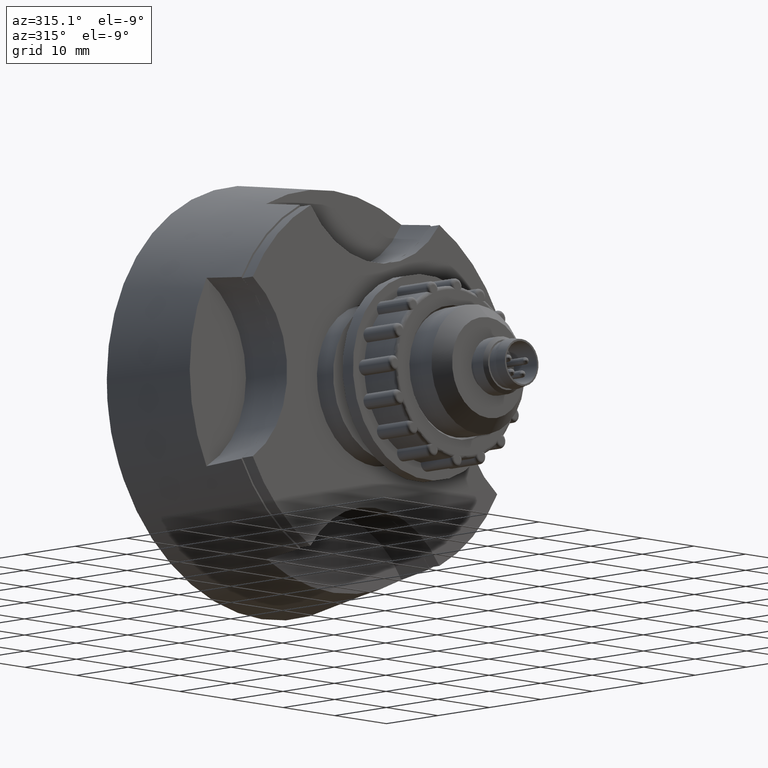
[diagram: clean part render]
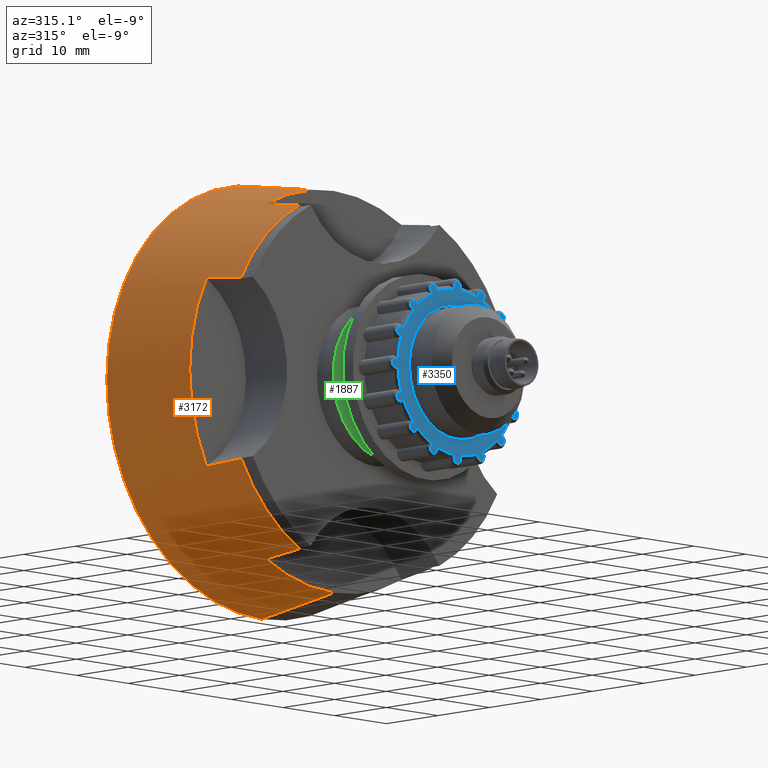
[diagram: same view with three faces highlighted in distinct colors, each labeled with its STEP entity id]
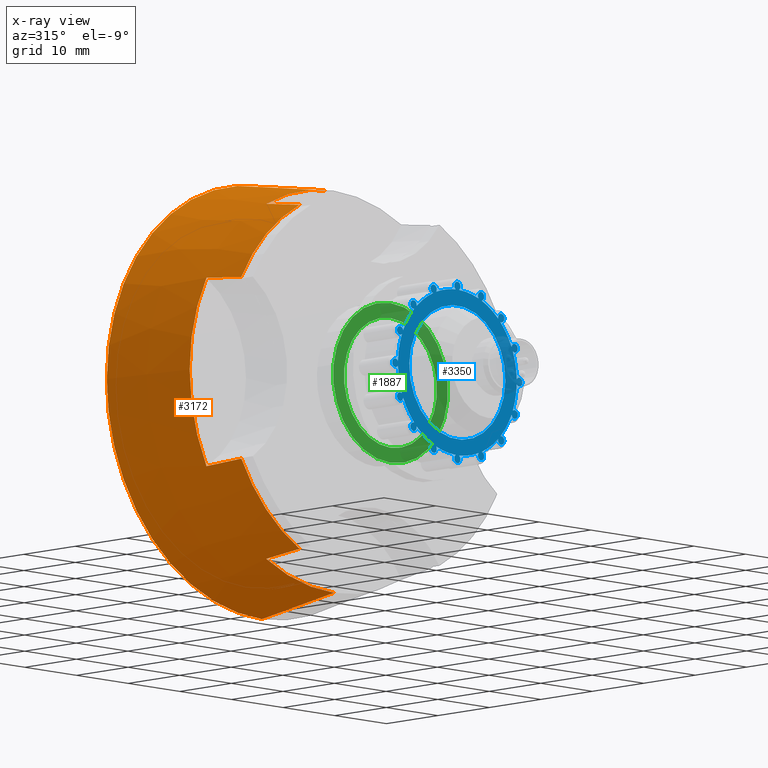
[diagram: x-ray of the same camera — body ghosted, the three highlighted faces saturated]
A machine part, auxiliary view with three faces highlighted in distinct colors.
The next image is the same camera in x-ray (body ghosted, the three faces saturated) — at least one of them is partly hidden behind the body in this view.
Their STEP definitions:

[orange] entity #3172 — the highlighted conical surface has half-angle 8.5 deg.
#147 = VERTEX_POINT ( 'NONE', #589 ) ;
#246 = CARTESIAN_POINT ( 'NONE',  ( 0.0000000000000000000, 43.99999999999998579, 0.0000000000000000000 ) ) ;
#271 = FACE_OUTER_BOUND ( 'NONE', #1459, .T. ) ;
#411 = DIRECTION ( 'NONE',  ( -0.0000000000000000000, 1.000000000000000000, 0.0000000000000000000 ) ) ;
#420 = CARTESIAN_POINT ( 'NONE',  ( 3.673940397442056022E-15, 43.99999999999998579, 29.99999999999997513 ) ) ;
#429 = ORIENTED_EDGE ( 'NONE', *, *, #3072, .T. ) ;
#589 = CARTESIAN_POINT ( 'NONE',  ( -12.61486684319546647, 23.99999999999999289, -23.88426623598041232 ) ) ;
#591 = CARTESIAN_POINT ( 'NONE',  ( 0.0000000000000000000, 30.00000000000000000, 0.0000000000000000000 ) ) ;
#602 = VERTEX_POINT ( 'NONE', #2873 ) ;
#861 = AXIS2_PLACEMENT_3D ( 'NONE', #246, #2926, #6714 ) ;
#876 = EDGE_CURVE ( 'NONE', #147, #4487, #6561, .T. ) ;
#1014 = CARTESIAN_POINT ( 'NONE',  ( -23.88426623598041587, 23.99999999999999289, 12.61486684319547003 ) ) ;
#1057 = CARTESIAN_POINT ( 'NONE',  ( 3.673940397442055233E-15, 43.99999999999998579, -29.99999999999996447 ) ) ;
#1086 = CONICAL_SURFACE ( 'NONE', #5046, 29.99999999999996447, 0.1483529864195188008 ) ;
#1114 = CARTESIAN_POINT ( 'NONE',  ( -13.07793434999361004, 30.00000000000000355, 24.65373338781819257 ) ) ;
#1150 = DIRECTION ( 'NONE',  ( 0.0000000000000000000, 0.0000000000000000000, 1.000000000000000000 ) ) ;
#1181 = DIRECTION ( 'NONE',  ( -0.0000000000000000000, 1.000000000000000000, 0.0000000000000000000 ) ) ;
#1187 = CARTESIAN_POINT ( 'NONE',  ( -24.39304689913073432, 27.99992701513786741, 12.93149895761128576 ) ) ;
#1290 = DIRECTION ( 'NONE',  ( -0.0000000000000000000, 1.000000000000000000, 0.0000000000000000000 ) ) ;
#1347 = DIRECTION ( 'NONE',  ( 0.0000000000000000000, 0.0000000000000000000, 1.000000000000000000 ) ) ;
#1411 = CARTESIAN_POINT ( 'NONE',  ( -12.93149895761128576, 27.99992701513786741, -24.39304689913073432 ) ) ;
#1450 = ORIENTED_EDGE ( 'NONE', *, *, #4183, .F. ) ;
#1457 = ORIENTED_EDGE ( 'NONE', *, *, #2135, .T. ) ;
#1459 = EDGE_LOOP ( 'NONE', ( #1450, #5353, #5160, #4317, #1457, #1494, #6194, #6443, #3252, #6207, #429, #4443 ) ) ;
#1480 = EDGE_CURVE ( 'NONE', #2574, #4695, #4291, .T. ) ;
#1494 = ORIENTED_EDGE ( 'NONE', *, *, #5920, .T. ) ;
#1554 = VERTEX_POINT ( 'NONE', #3481 ) ;
#1648 = CARTESIAN_POINT ( 'NONE',  ( -24.65373338781819612, 30.00000000000000000, -13.07793434999361182 ) ) ;
#1674 = AXIS2_PLACEMENT_3D ( 'NONE', #591, #2736, #1150 ) ;
#1694 = VERTEX_POINT ( 'NONE', #3116 ) ;
#1780 = CARTESIAN_POINT ( 'NONE',  ( -24.13655781690841096, 25.99992434162717814, 12.77717781541311837 ) ) ;
#2114 = CIRCLE ( 'NONE', #6984, 27.90768598111216647 ) ;
#2135 = EDGE_CURVE ( 'NONE', #4487, #6764, #4972, .T. ) ;
#2214 = DIRECTION ( 'NONE',  ( 0.0000000000000000000, 0.9890158633619167139, 0.1478094111296114066 ) ) ;
#2362 = CARTESIAN_POINT ( 'NONE',  ( -12.61486684319546647, 23.99999999999999289, -23.88426623598041232 ) ) ;
#2493 = EDGE_CURVE ( 'NONE', #1694, #602, #2114, .T. ) ;
#2574 = VERTEX_POINT ( 'NONE', #4211 ) ;
#2666 = CARTESIAN_POINT ( 'NONE',  ( -24.39304689913073076, 27.99992701513786386, -12.93149895761128576 ) ) ;
#2736 = DIRECTION ( 'NONE',  ( -0.0000000000000000000, 1.000000000000000000, 0.0000000000000000000 ) ) ;
#2774 = CARTESIAN_POINT ( 'NONE',  ( -24.65373338781819612, 30.00000000000000000, 13.07793434999361182 ) ) ;
#2799 = CIRCLE ( 'NONE', #1674, 27.90768598111216647 ) ;
#2873 = CARTESIAN_POINT ( 'NONE',  ( -13.07793434999361004, 30.00000000000000000, -24.65373338781819257 ) ) ;
#2877 = CIRCLE ( 'NONE', #861, 29.99999999999996092 ) ;
#2902 = EDGE_CURVE ( 'NONE', #4727, #4504, #2877, .T. ) ;
#2926 = DIRECTION ( 'NONE',  ( -0.0000000000000000000, -1.000000000000000000, -0.0000000000000000000 ) ) ;
#2958 = DIRECTION ( 'NONE',  ( -0.0000000000000000000, 1.000000000000000000, 0.0000000000000000000 ) ) ;
#2993 = DIRECTION ( 'NONE',  ( 0.0000000000000000000, 0.0000000000000000000, 1.000000000000000000 ) ) ;
#3072 = EDGE_CURVE ( 'NONE', #5175, #4727, #5487, .T. ) ;
#3116 = CARTESIAN_POINT ( 'NONE',  ( 3.417705830837847624E-15, 30.00000000000000000, -27.90768598111216647 ) ) ;
#3129 = CARTESIAN_POINT ( 'NONE',  ( -23.88426623598041232, 23.99999999999999645, -12.61486684319547003 ) ) ;
#3161 = B_SPLINE_CURVE_WITH_KNOTS ( 'NONE', 3,
 ( #4497, #3358, #6647, #6517 ),
 .UNSPECIFIED., .F., .F.,
 ( 4, 4 ),
 ( 0.0000000000000000000, 0.006066837002393390445 ),
 .UNSPECIFIED. ) ;
#3172 = ADVANCED_FACE ( 'NONE', ( #271 ), #1086, .T. ) ;
#3200 = CARTESIAN_POINT ( 'NONE',  ( -24.13655781690841096, 25.99992434162717814, -12.77717781541311837 ) ) ;
#3252 = ORIENTED_EDGE ( 'NONE', *, *, #6589, .T. ) ;
#3358 = CARTESIAN_POINT ( 'NONE',  ( -12.77717781541312014, 25.99992434162717814, 24.13655781690841096 ) ) ;
#3481 = CARTESIAN_POINT ( 'NONE',  ( -12.61486684319547003, 23.99999999999999645, 23.88426623598041587 ) ) ;
#3504 = AXIS2_PLACEMENT_3D ( 'NONE', #5698, #2958, #2993 ) ;
#3663 = CARTESIAN_POINT ( 'NONE',  ( 0.0000000000000000000, 30.00000000000000711, 27.90768598111216647 ) ) ;
#3683 = VECTOR ( 'NONE', #2214, 1000.000000000000000 ) ;
#3751 = LINE ( 'NONE', #1057, #5514 ) ;
#4060 = DIRECTION ( 'NONE',  ( 0.0000000000000000000, 0.0000000000000000000, 1.000000000000000000 ) ) ;
#4164 = AXIS2_PLACEMENT_3D ( 'NONE', #6746, #411, #4060 ) ;
#4183 = EDGE_CURVE ( 'NONE', #1694, #4504, #3751, .T. ) ;
#4211 = CARTESIAN_POINT ( 'NONE',  ( -24.65373338781819612, 30.00000000000000000, 13.07793434999361182 ) ) ;
#4291 = B_SPLINE_CURVE_WITH_KNOTS ( 'NONE', 3,
 ( #2774, #1187, #1780, #6106 ),
 .UNSPECIFIED., .F., .F.,
 ( 4, 4 ),
 ( 0.0000000000000000000, 0.006066837002393394782 ),
 .UNSPECIFIED. ) ;
#4317 = ORIENTED_EDGE ( 'NONE', *, *, #876, .T. ) ;
#4391 = DIRECTION ( 'NONE',  ( 1.810143222237337608E-17, 0.9890158633619167139, -0.1478094111296114066 ) ) ;
#4443 = ORIENTED_EDGE ( 'NONE', *, *, #2902, .T. ) ;
#4474 = CARTESIAN_POINT ( 'NONE',  ( 0.0000000000000000000, 23.99999999999999289, 0.0000000000000000000 ) ) ;
#4487 = VERTEX_POINT ( 'NONE', #3129 ) ;
#4497 = CARTESIAN_POINT ( 'NONE',  ( -12.61486684319547003, 23.99999999999999645, 23.88426623598041587 ) ) ;
#4504 = VERTEX_POINT ( 'NONE', #5304 ) ;
#4575 = EDGE_CURVE ( 'NONE', #5886, #5175, #6088, .T. ) ;
#4669 = CARTESIAN_POINT ( 'NONE',  ( 0.0000000000000000000, 43.99999999999998579, 0.0000000000000000000 ) ) ;
#4695 = VERTEX_POINT ( 'NONE', #1014 ) ;
#4727 = VERTEX_POINT ( 'NONE', #420 ) ;
#4912 = CARTESIAN_POINT ( 'NONE',  ( -23.88426623598041232, 23.99999999999999645, -12.61486684319547003 ) ) ;
#4972 = B_SPLINE_CURVE_WITH_KNOTS ( 'NONE', 3,
 ( #4912, #3200, #2666, #1648 ),
 .UNSPECIFIED., .F., .F.,
 ( 4, 4 ),
 ( 0.0000000000000000000, 0.006066837002393390445 ),
 .UNSPECIFIED. ) ;
#5046 = AXIS2_PLACEMENT_3D ( 'NONE', #4669, #1290, #6138 ) ;
#5074 = DIRECTION ( 'NONE',  ( 0.0000000000000000000, 0.0000000000000000000, 1.000000000000000000 ) ) ;
#5114 = B_SPLINE_CURVE_WITH_KNOTS ( 'NONE', 3,
 ( #6261, #1411, #6823, #2362 ),
 .UNSPECIFIED., .F., .F.,
 ( 4, 4 ),
 ( 0.0000000000000000000, 0.006066837002393394782 ),
 .UNSPECIFIED. ) ;
#5143 = DIRECTION ( 'NONE',  ( -0.0000000000000000000, 1.000000000000000000, 0.0000000000000000000 ) ) ;
#5160 = ORIENTED_EDGE ( 'NONE', *, *, #6689, .T. ) ;
#5175 = VERTEX_POINT ( 'NONE', #3663 ) ;
#5304 = CARTESIAN_POINT ( 'NONE',  ( 0.0000000000000000000, 43.99999999999998579, -29.99999999999997513 ) ) ;
#5353 = ORIENTED_EDGE ( 'NONE', *, *, #2493, .T. ) ;
#5487 = LINE ( 'NONE', #6603, #3683 ) ;
#5514 = VECTOR ( 'NONE', #4391, 1000.000000000000000 ) ;
#5640 = CARTESIAN_POINT ( 'NONE',  ( 0.0000000000000000000, 30.00000000000000000, 0.0000000000000000000 ) ) ;
#5698 = CARTESIAN_POINT ( 'NONE',  ( 0.0000000000000000000, 23.99999999999999289, 0.0000000000000000000 ) ) ;
#5802 = CARTESIAN_POINT ( 'NONE',  ( -24.65373338781819612, 30.00000000000000000, -13.07793434999361182 ) ) ;
#5855 = CIRCLE ( 'NONE', #6977, 27.01097997301739184 ) ;
#5886 = VERTEX_POINT ( 'NONE', #1114 ) ;
#5920 = EDGE_CURVE ( 'NONE', #6764, #2574, #2799, .T. ) ;
#6005 = EDGE_CURVE ( 'NONE', #4695, #1554, #5855, .T. ) ;
#6088 = CIRCLE ( 'NONE', #4164, 27.90768598111216647 ) ;
#6106 = CARTESIAN_POINT ( 'NONE',  ( -23.88426623598041587, 23.99999999999999289, 12.61486684319547003 ) ) ;
#6138 = DIRECTION ( 'NONE',  ( 0.0000000000000000000, 0.0000000000000000000, 1.000000000000000000 ) ) ;
#6194 = ORIENTED_EDGE ( 'NONE', *, *, #1480, .T. ) ;
#6207 = ORIENTED_EDGE ( 'NONE', *, *, #4575, .T. ) ;
#6261 = CARTESIAN_POINT ( 'NONE',  ( -13.07793434999361004, 30.00000000000000000, -24.65373338781819257 ) ) ;
#6443 = ORIENTED_EDGE ( 'NONE', *, *, #6005, .T. ) ;
#6517 = CARTESIAN_POINT ( 'NONE',  ( -13.07793434999361004, 30.00000000000000355, 24.65373338781819257 ) ) ;
#6561 = CIRCLE ( 'NONE', #3504, 27.01097997301739184 ) ;
#6589 = EDGE_CURVE ( 'NONE', #1554, #5886, #3161, .T. ) ;
#6603 = CARTESIAN_POINT ( 'NONE',  ( 0.0000000000000000000, 43.99999999999998579, 29.99999999999996447 ) ) ;
#6647 = CARTESIAN_POINT ( 'NONE',  ( -12.93149895761128576, 27.99992701513786386, 24.39304689913073076 ) ) ;
#6689 = EDGE_CURVE ( 'NONE', #602, #147, #5114, .T. ) ;
#6714 = DIRECTION ( 'NONE',  ( 0.0000000000000000000, 0.0000000000000000000, 1.000000000000000000 ) ) ;
#6746 = CARTESIAN_POINT ( 'NONE',  ( 0.0000000000000000000, 30.00000000000000711, 0.0000000000000000000 ) ) ;
#6764 = VERTEX_POINT ( 'NONE', #5802 ) ;
#6823 = CARTESIAN_POINT ( 'NONE',  ( -12.77717781541311837, 25.99992434162717814, -24.13655781690841096 ) ) ;
#6977 = AXIS2_PLACEMENT_3D ( 'NONE', #4474, #1181, #5074 ) ;
#6984 = AXIS2_PLACEMENT_3D ( 'NONE', #5640, #5143, #1347 ) ;

[blue] entity #3350 — the highlighted planar face has unit normal (0, 1, 0).
#19 = DIRECTION ( 'NONE',  ( -0.0000000000000000000, -1.000000000000000000, -0.0000000000000000000 ) ) ;
#34 = DIRECTION ( 'NONE',  ( -0.0000000000000000000, -1.000000000000000000, -0.0000000000000000000 ) ) ;
#49 = VERTEX_POINT ( 'NONE', #375 ) ;
#82 = ORIENTED_EDGE ( 'NONE', *, *, #5772, .T. ) ;
#96 = CIRCLE ( 'NONE', #2466, 9.299999999999993605 ) ;
#103 = EDGE_CURVE ( 'NONE', #3837, #6473, #3744, .T. ) ;
#113 = VERTEX_POINT ( 'NONE', #6417 ) ;
#117 = DIRECTION ( 'NONE',  ( -0.0000000000000000000, -1.000000000000000000, -0.0000000000000000000 ) ) ;
#133 = CARTESIAN_POINT ( 'NONE',  ( -11.08655439013541866, 5.999999999992390087, 4.592201188381126897 ) ) ;
#138 = DIRECTION ( 'NONE',  ( -0.2952032603176587555, 0.0000000000000000000, -0.9554344745181768683 ) ) ;
#141 = CIRCLE ( 'NONE', #2282, 0.6000000000000028644 ) ;
#149 = EDGE_CURVE ( 'NONE', #1607, #5750, #141, .T. ) ;
#152 = CARTESIAN_POINT ( 'NONE',  ( -12.53060065386612365, 5.999999999992390087, -0.2801123812272804936 ) ) ;
#160 = CARTESIAN_POINT ( 'NONE',  ( -9.058542058949440090, 5.999999999992390087, 8.662403330429214066 ) ) ;
#192 = CIRCLE ( 'NONE', #2788, 0.6000000000000029754 ) ;
#198 = CARTESIAN_POINT ( 'NONE',  ( -0.2801123812272409697, 5.999999999992390087, 12.53060065386612898 ) ) ;
#203 = DIRECTION ( 'NONE',  ( 0.8843344231101996078, 0.0000000000000000000, 0.4668539687122199022 ) ) ;
#229 = DIRECTION ( 'NONE',  ( 0.7697369587592941542, 0.0000000000000000000, -0.6383611942466369538 ) ) ;
#232 = EDGE_CURVE ( 'NONE', #6859, #4663, #4784, .T. ) ;
#237 = ORIENTED_EDGE ( 'NONE', *, *, #6910, .T. ) ;
#283 = DIRECTION ( 'NONE',  ( -0.09289669397047328747, 0.0000000000000000000, 0.9956757525667461195 ) ) ;
#301 = CARTESIAN_POINT ( 'NONE',  ( -8.358047156544454737, 5.999999999992390087, -7.898926998585253045 ) ) ;
#310 = DIRECTION ( 'NONE',  ( -0.0000000000000000000, -1.000000000000000000, -0.0000000000000000000 ) ) ;
#311 = CARTESIAN_POINT ( 'NONE',  ( 8.485281374238525132, 5.999999999992390087, 8.485281374238622831 ) ) ;
#331 = AXIS2_PLACEMENT_3D ( 'NONE', #133, #6507, #6576 ) ;
#375 = CARTESIAN_POINT ( 'NONE',  ( 11.46957110668340007, 5.999999999992390087, 5.054043363636722574 ) ) ;
#402 = VERTEX_POINT ( 'NONE', #152 ) ;
#413 = EDGE_CURVE ( 'NONE', #4351, #4042, #3279, .T. ) ;
#419 = CIRCLE ( 'NONE', #2560, 11.50000000000000000 ) ;
#431 = CIRCLE ( 'NONE', #3932, 0.6000000000000031974 ) ;
#464 = CARTESIAN_POINT ( 'NONE',  ( 0.8639392539254008296, 5.999999999992390087, -9.259784498870732961 ) ) ;
#477 = DIRECTION ( 'NONE',  ( -0.0000000000000000000, -1.000000000000000000, -0.0000000000000000000 ) ) ;
#481 = DIRECTION ( 'NONE',  ( -0.09289669397046798616, 0.0000000000000000000, 0.9956757525667465636 ) ) ;
#483 = DIRECTION ( 'NONE',  ( -0.09289669397047294053, 0.0000000000000000000, 0.9956757525667461195 ) ) ;
#494 = CARTESIAN_POINT ( 'NONE',  ( -10.49614315652946139, 5.999999999992390087, -4.699040203875654242 ) ) ;
#495 = CARTESIAN_POINT ( 'NONE',  ( 0.3246469770724520476, 5.999999999992390087, 11.49541666666666728 ) ) ;
#504 = CARTESIAN_POINT ( 'NONE',  ( 0.0000000000000000000, 5.999999999992390087, 0.0000000000000000000 ) ) ;
#505 = VERTEX_POINT ( 'NONE', #5678 ) ;
#514 = CARTESIAN_POINT ( 'NONE',  ( 6.938893903907228378E-15, 5.999999999992390087, -11.99999999999999289 ) ) ;
#518 = CARTESIAN_POINT ( 'NONE',  ( -11.08655439013541866, 5.999999999992390087, 4.592201188381126897 ) ) ;
#530 = VERTEX_POINT ( 'NONE', #198 ) ;
#581 = DIRECTION ( 'NONE',  ( -0.0000000000000000000, -1.000000000000000000, -0.0000000000000000000 ) ) ;
#584 = ORIENTED_EDGE ( 'NONE', *, *, #2213, .T. ) ;
#606 = VERTEX_POINT ( 'NONE', #6697 ) ;
#616 = VERTEX_POINT ( 'NONE', #5017 ) ;
#620 = ORIENTED_EDGE ( 'NONE', *, *, #3444, .T. ) ;
#633 = DIRECTION ( 'NONE',  ( -0.0000000000000000000, -1.000000000000000000, -0.0000000000000000000 ) ) ;
#643 = CIRCLE ( 'NONE', #3234, 0.6000000000000034195 ) ;
#687 = ORIENTED_EDGE ( 'NONE', *, *, #6290, .T. ) ;
#727 = EDGE_CURVE ( 'NONE', #5716, #5985, #4421, .T. ) ;
#730 = DIRECTION ( 'NONE',  ( 0.9554344745181778675, 0.0000000000000000000, -0.2952032603176553138 ) ) ;
#750 = ORIENTED_EDGE ( 'NONE', *, *, #2778, .T. ) ;
#758 = DIRECTION ( 'NONE',  ( -0.7697369587592889362, 0.0000000000000000000, 0.6383611942466431710 ) ) ;
#791 = EDGE_CURVE ( 'NONE', #6860, #5709, #1250, .T. ) ;
#871 = ORIENTED_EDGE ( 'NONE', *, *, #1685, .T. ) ;
#874 = CARTESIAN_POINT ( 'NONE',  ( -11.08655439013544886, 5.999999999992390087, -4.592201188381050514 ) ) ;
#883 = EDGE_CURVE ( 'NONE', #3506, #606, #2367, .T. ) ;
#885 = DIRECTION ( 'NONE',  ( -0.0000000000000000000, -1.000000000000000000, -0.0000000000000000000 ) ) ;
#890 = CIRCLE ( 'NONE', #2806, 11.50000000000000000 ) ;
#893 = CIRCLE ( 'NONE', #3835, 0.6000000000000025313 ) ;
#908 = CARTESIAN_POINT ( 'NONE',  ( -0.3246469770723653392, 5.999999999992390087, -11.49541666666666018 ) ) ;
#922 = ORIENTED_EDGE ( 'NONE', *, *, #103, .T. ) ;
#938 = CARTESIAN_POINT ( 'NONE',  ( 5.054043363636668396, 5.999999999992390087, -11.46957110668341429 ) ) ;
#966 = AXIS2_PLACEMENT_3D ( 'NONE', #1828, #4102, #2396 ) ;
#988 = ORIENTED_EDGE ( 'NONE', *, *, #2715, .T. ) ;
#1004 = DIRECTION ( 'NONE',  ( -0.0000000000000000000, -1.000000000000000000, -0.0000000000000000000 ) ) ;
#1005 = AXIS2_PLACEMENT_3D ( 'NONE', #1372, #6886, #5697 ) ;
#1011 = DIRECTION ( 'NONE',  ( -0.0000000000000000000, -1.000000000000000000, -0.0000000000000000000 ) ) ;
#1035 = CIRCLE ( 'NONE', #1605, 0.6000000000000029754 ) ;
#1055 = CARTESIAN_POINT ( 'NONE',  ( -10.49614315652942942, 5.999999999992390087, 4.699040203875730626 ) ) ;
#1063 = VERTEX_POINT ( 'NONE', #2389 ) ;
#1065 = EDGE_CURVE ( 'NONE', #5840, #6819, #6595, .T. ) ;
#1115 = EDGE_CURVE ( 'NONE', #5286, #4002, #2630, .T. ) ;
#1144 = ORIENTED_EDGE ( 'NONE', *, *, #6478, .T. ) ;
#1221 = CIRCLE ( 'NONE', #1681, 11.50000000000000000 ) ;
#1229 = DIRECTION ( 'NONE',  ( -0.09289669397047327359, 0.0000000000000000000, 0.9956757525667461195 ) ) ;
#1245 = CIRCLE ( 'NONE', #5770, 11.50000000000000000 ) ;
#1250 = CIRCLE ( 'NONE', #4522, 0.6000000000000027534 ) ;
#1254 = CIRCLE ( 'NONE', #1478, 0.6000000000000027534 ) ;
#1255 = DIRECTION ( 'NONE',  ( -0.9554344745181759802, 0.0000000000000000000, 0.2952032603176614201 ) ) ;
#1267 = EDGE_CURVE ( 'NONE', #606, #4852, #5481, .T. ) ;
#1271 = DIRECTION ( 'NONE',  ( -0.0000000000000000000, -1.000000000000000000, -0.0000000000000000000 ) ) ;
#1272 = DIRECTION ( 'NONE',  ( -0.0000000000000000000, -1.000000000000000000, -0.0000000000000000000 ) ) ;
#1273 = DIRECTION ( 'NONE',  ( 0.7697369587592961526, 0.0000000000000000000, -0.6383611942466345113 ) ) ;
#1282 = AXIS2_PLACEMENT_3D ( 'NONE', #4194, #5795, #481 ) ;
#1310 = EDGE_CURVE ( 'NONE', #5489, #5840, #5674, .T. ) ;
#1317 = AXIS2_PLACEMENT_3D ( 'NONE', #6221, #310, #3563 ) ;
#1323 = CIRCLE ( 'NONE', #4038, 11.50000000000000000 ) ;
#1355 = EDGE_CURVE ( 'NONE', #4042, #5489, #4999, .T. ) ;
#1372 = CARTESIAN_POINT ( 'NONE',  ( 8.485281374238525132, 5.999999999992390087, 8.485281374238622831 ) ) ;
#1376 = EDGE_CURVE ( 'NONE', #4002, #113, #6342, .T. ) ;
#1377 = DIRECTION ( 'NONE',  ( -0.0000000000000000000, -1.000000000000000000, -0.0000000000000000000 ) ) ;
#1421 = DIRECTION ( 'NONE',  ( -0.09289669397047328747, 0.0000000000000000000, 0.9956757525667461195 ) ) ;
#1433 = DIRECTION ( 'NONE',  ( -0.0000000000000000000, -1.000000000000000000, -0.0000000000000000000 ) ) ;
#1439 = EDGE_CURVE ( 'NONE', #6402, #1519, #2839, .T. ) ;
#1478 = AXIS2_PLACEMENT_3D ( 'NONE', #514, #477, #4767 ) ;
#1482 = DIRECTION ( 'NONE',  ( -0.0000000000000000000, -1.000000000000000000, -0.0000000000000000000 ) ) ;
#1510 = ORIENTED_EDGE ( 'NONE', *, *, #3960, .T. ) ;
#1519 = VERTEX_POINT ( 'NONE', #3055 ) ;
#1521 = EDGE_CURVE ( 'NONE', #2609, #3449, #1035, .T. ) ;
#1574 = AXIS2_PLACEMENT_3D ( 'NONE', #3038, #5211, #5805 ) ;
#1605 = AXIS2_PLACEMENT_3D ( 'NONE', #1984, #4586, #229 ) ;
#1607 = VERTEX_POINT ( 'NONE', #4010 ) ;
#1681 = AXIS2_PLACEMENT_3D ( 'NONE', #504, #3760, #5429 ) ;
#1685 = EDGE_CURVE ( 'NONE', #5603, #505, #1254, .T. ) ;
#1715 = CARTESIAN_POINT ( 'NONE',  ( -8.662403330429176762, 5.999999999992390087, -9.058542058949463183 ) ) ;
#1723 = AXIS2_PLACEMENT_3D ( 'NONE', #2624, #6946, #6457 ) ;
#1732 = AXIS2_PLACEMENT_3D ( 'NONE', #6388, #1433, #2095 ) ;
#1756 = DIRECTION ( 'NONE',  ( -0.8843344231102029385, 0.0000000000000000000, -0.4668539687122137405 ) ) ;
#1764 = CARTESIAN_POINT ( 'NONE',  ( 6.938893903907228378E-15, 5.999999999992390087, -11.99999999999999289 ) ) ;
#1769 = EDGE_LOOP ( 'NONE', ( #3113, #4814 ) ) ;
#1772 = CIRCLE ( 'NONE', #5969, 0.6000000000000024203 ) ;
#1776 = AXIS2_PLACEMENT_3D ( 'NONE', #5857, #1004, #3733 ) ;
#1789 = ORIENTED_EDGE ( 'NONE', *, *, #3036, .T. ) ;
#1790 = CARTESIAN_POINT ( 'NONE',  ( -11.99999999999999822, 5.999999999992390087, 4.857225732735059864E-14 ) ) ;
#1807 = ORIENTED_EDGE ( 'NONE', *, *, #1376, .T. ) ;
#1822 = CARTESIAN_POINT ( 'NONE',  ( 11.99999999999999645, 5.999999999992390087, 5.551115123125782702E-14 ) ) ;
#1823 = DIRECTION ( 'NONE',  ( -0.0000000000000000000, -1.000000000000000000, -0.0000000000000000000 ) ) ;
#1828 = CARTESIAN_POINT ( 'NONE',  ( 0.0000000000000000000, 5.999999999992390087, 0.0000000000000000000 ) ) ;
#1840 = AXIS2_PLACEMENT_3D ( 'NONE', #5465, #3294, #4400 ) ;
#1927 = DIRECTION ( 'NONE',  ( -0.0000000000000000000, -1.000000000000000000, -0.0000000000000000000 ) ) ;
#1953 = VERTEX_POINT ( 'NONE', #4200 ) ;
#1984 = CARTESIAN_POINT ( 'NONE',  ( 4.592201188381090482, 5.999999999992390087, -11.08655439013542932 ) ) ;
#2023 = AXIS2_PLACEMENT_3D ( 'NONE', #6747, #3119, #3984 ) ;
#2029 = ORIENTED_EDGE ( 'NONE', *, *, #791, .T. ) ;
#2030 = CARTESIAN_POINT ( 'NONE',  ( -11.08655439013544886, 5.999999999992390087, -4.592201188381050514 ) ) ;
#2062 = CIRCLE ( 'NONE', #1840, 0.6000000000000028644 ) ;
#2090 = CIRCLE ( 'NONE', #5832, 0.6000000000000021982 ) ;
#2095 = DIRECTION ( 'NONE',  ( -0.4668539687122100768, 0.0000000000000000000, 0.8843344231102048258 ) ) ;
#2096 = CARTESIAN_POINT ( 'NONE',  ( -8.485281374238532237, 5.999999999992390087, 8.485281374238615726 ) ) ;
#2139 = DIRECTION ( 'NONE',  ( -0.09289669397047327359, 0.0000000000000000000, 0.9956757525667460085 ) ) ;
#2177 = CIRCLE ( 'NONE', #1732, 0.6000000000000027534 ) ;
#2183 = CARTESIAN_POINT ( 'NONE',  ( 0.0000000000000000000, 5.999999999992390087, 0.0000000000000000000 ) ) ;
#2213 = EDGE_CURVE ( 'NONE', #4663, #4351, #6976, .T. ) ;
#2233 = ORIENTED_EDGE ( 'NONE', *, *, #4651, .T. ) ;
#2280 = DIRECTION ( 'NONE',  ( -0.0000000000000000000, -1.000000000000000000, -0.0000000000000000000 ) ) ;
#2282 = AXIS2_PLACEMENT_3D ( 'NONE', #6001, #6381, #5439 ) ;
#2287 = DIRECTION ( 'NONE',  ( -0.09289669397047328747, 0.0000000000000000000, 0.9956757525667461195 ) ) ;
#2299 = ORIENTED_EDGE ( 'NONE', *, *, #1310, .T. ) ;
#2361 = AXIS2_PLACEMENT_3D ( 'NONE', #3233, #3197, #4299 ) ;
#2367 = CIRCLE ( 'NONE', #3735, 0.6000000000000029754 ) ;
#2389 = CARTESIAN_POINT ( 'NONE',  ( 11.49541666666667084, 5.999999999992390087, -0.3246469770723237058 ) ) ;
#2396 = DIRECTION ( 'NONE',  ( -0.09289669397047682631, 0.0000000000000000000, 0.9956757525667457864 ) ) ;
#2421 = DIRECTION ( 'NONE',  ( -0.0000000000000000000, -1.000000000000000000, -0.0000000000000000000 ) ) ;
#2426 = EDGE_CURVE ( 'NONE', #5909, #5152, #3363, .T. ) ;
#2434 = DIRECTION ( 'NONE',  ( -0.0000000000000000000, -1.000000000000000000, -0.0000000000000000000 ) ) ;
#2463 = CARTESIAN_POINT ( 'NONE',  ( -4.536463171998720512, 5.999999999992390087, -11.68395984167551838 ) ) ;
#2466 = AXIS2_PLACEMENT_3D ( 'NONE', #3915, #6080, #1229 ) ;
#2525 = CARTESIAN_POINT ( 'NONE',  ( 7.898926998585232617, 5.999999999992390087, 8.358047156544499146 ) ) ;
#2560 = AXIS2_PLACEMENT_3D ( 'NONE', #6824, #5735, #3634 ) ;
#2564 = AXIS2_PLACEMENT_3D ( 'NONE', #6597, #5509, #758 ) ;
#2573 = VERTEX_POINT ( 'NONE', #464 ) ;
#2575 = CIRCLE ( 'NONE', #6538, 0.6000000000000019762 ) ;
#2609 = VERTEX_POINT ( 'NONE', #4463 ) ;
#2610 = VERTEX_POINT ( 'NONE', #6645 ) ;
#2624 = CARTESIAN_POINT ( 'NONE',  ( -4.592201188381012322, 5.999999999992390087, 11.08655439013546484 ) ) ;
#2626 = DIRECTION ( 'NONE',  ( -0.09289669397046444732, 0.0000000000000000000, 0.9956757525667468967 ) ) ;
#2628 = AXIS2_PLACEMENT_3D ( 'NONE', #5902, #6918, #2139 ) ;
#2630 = CIRCLE ( 'NONE', #6820, 0.6000000000000025313 ) ;
#2631 = PLANE ( 'NONE',  #2628 ) ;
#2683 = AXIS2_PLACEMENT_3D ( 'NONE', #4409, #5606, #6686 ) ;
#2700 = VERTEX_POINT ( 'NONE', #2888 ) ;
#2715 = EDGE_CURVE ( 'NONE', #5985, #6127, #6163, .T. ) ;
#2723 = ORIENTED_EDGE ( 'NONE', *, *, #4516, .T. ) ;
#2735 = CARTESIAN_POINT ( 'NONE',  ( 0.0000000000000000000, 5.999999999992390087, 0.0000000000000000000 ) ) ;
#2747 = CIRCLE ( 'NONE', #6367, 11.50000000000000000 ) ;
#2757 = VERTEX_POINT ( 'NONE', #6225 ) ;
#2778 = EDGE_CURVE ( 'NONE', #616, #6402, #2090, .T. ) ;
#2788 = AXIS2_PLACEMENT_3D ( 'NONE', #874, #5767, #2992 ) ;
#2791 = EDGE_CURVE ( 'NONE', #6127, #5909, #5503, .T. ) ;
#2800 = ORIENTED_EDGE ( 'NONE', *, *, #232, .T. ) ;
#2806 = AXIS2_PLACEMENT_3D ( 'NONE', #2183, #3283, #2287 ) ;
#2809 = CIRCLE ( 'NONE', #1005, 0.6000000000000033085 ) ;
#2839 = CIRCLE ( 'NONE', #6464, 11.50000000000000178 ) ;
#2847 = DIRECTION ( 'NONE',  ( 0.6383611942466306255, 0.0000000000000000000, 0.7697369587592993723 ) ) ;
#2888 = CARTESIAN_POINT ( 'NONE',  ( 4.699040203875697763, 5.999999999992390087, -10.49614315652944185 ) ) ;
#2955 = ORIENTED_EDGE ( 'NONE', *, *, #727, .T. ) ;
#2964 = CARTESIAN_POINT ( 'NONE',  ( 10.49614315652946672, 5.999999999992390087, -4.699040203875647137 ) ) ;
#2977 = VERTEX_POINT ( 'NONE', #3094 ) ;
#2992 = DIRECTION ( 'NONE',  ( -0.6383611942466369538, 0.0000000000000000000, -0.7697369587592941542 ) ) ;
#3003 = EDGE_LOOP ( 'NONE', ( #82, #4016, #2233, #4118, #4048, #2800, #584, #3106, #3716, #2299, #6669, #3786, #6297, #922, #237, #6773, #4080, #5719, #4938, #2723, #2955, #988, #6506, #6932, #3216, #687, #1144, #871, #620, #6309, #5673, #1510, #5130, #1807, #5917, #6787, #5389, #3610, #6366, #750, #5183, #3700, #1789, #6926, #3914, #2029, #3892, #6653, #6675 ) ) ;
#3025 = DIRECTION ( 'NONE',  ( 0.9554344745181768683, 0.0000000000000000000, -0.2952032603176587555 ) ) ;
#3036 = EDGE_CURVE ( 'NONE', #49, #6375, #643, .T. ) ;
#3038 = CARTESIAN_POINT ( 'NONE',  ( 0.0000000000000000000, 5.999999999992390087, 0.0000000000000000000 ) ) ;
#3055 = CARTESIAN_POINT ( 'NONE',  ( 10.74461719551543837, 5.999999999992390087, 4.099170809058097831 ) ) ;
#3063 = DIRECTION ( 'NONE',  ( -0.0000000000000000000, -1.000000000000000000, -0.0000000000000000000 ) ) ;
#3066 = CARTESIAN_POINT ( 'NONE',  ( 9.058542058949496933, 5.999999999992390087, -8.662403330429141235 ) ) ;
#3086 = AXIS2_PLACEMENT_3D ( 'NONE', #6176, #1927, #4094 ) ;
#3094 = CARTESIAN_POINT ( 'NONE',  ( -0.8639392539253997194, 5.999999999992390087, 9.259784498870732961 ) ) ;
#3102 = AXIS2_PLACEMENT_3D ( 'NONE', #5597, #1271, #138 ) ;
#3106 = ORIENTED_EDGE ( 'NONE', *, *, #413, .T. ) ;
#3113 = ORIENTED_EDGE ( 'NONE', *, *, #6980, .T. ) ;
#3119 = DIRECTION ( 'NONE',  ( -0.0000000000000000000, -1.000000000000000000, -0.0000000000000000000 ) ) ;
#3122 = CARTESIAN_POINT ( 'NONE',  ( 4.699040203875616051, 5.999999999992390087, 10.49614315652948271 ) ) ;
#3144 = AXIS2_PLACEMENT_3D ( 'NONE', #1790, #633, #3817 ) ;
#3160 = CARTESIAN_POINT ( 'NONE',  ( -4.592201188381004329, 5.999999999992390087, -11.08655439013546840 ) ) ;
#3175 = AXIS2_PLACEMENT_3D ( 'NONE', #5936, #6468, #483 ) ;
#3197 = DIRECTION ( 'NONE',  ( -0.0000000000000000000, -1.000000000000000000, -0.0000000000000000000 ) ) ;
#3202 = FACE_OUTER_BOUND ( 'NONE', #3003, .T. ) ;
#3216 = ORIENTED_EDGE ( 'NONE', *, *, #5787, .T. ) ;
#3221 = CARTESIAN_POINT ( 'NONE',  ( 10.49614315652943120, 5.999999999992390087, 4.699040203875743948 ) ) ;
#3233 = CARTESIAN_POINT ( 'NONE',  ( 0.0000000000000000000, 5.999999999992390087, 0.0000000000000000000 ) ) ;
#3234 = AXIS2_PLACEMENT_3D ( 'NONE', #3950, #6537, #2847 ) ;
#3240 = DIRECTION ( 'NONE',  ( -0.4668539687122094661, 0.0000000000000000000, 0.8843344231102051589 ) ) ;
#3241 = CIRCLE ( 'NONE', #4950, 0.6000000000000026423 ) ;
#3274 = DIRECTION ( 'NONE',  ( -0.0000000000000000000, -1.000000000000000000, -0.0000000000000000000 ) ) ;
#3279 = CIRCLE ( 'NONE', #4761, 11.50000000000000000 ) ;
#3283 = DIRECTION ( 'NONE',  ( -0.0000000000000000000, -1.000000000000000000, -0.0000000000000000000 ) ) ;
#3294 = DIRECTION ( 'NONE',  ( -0.0000000000000000000, -1.000000000000000000, -0.0000000000000000000 ) ) ;
#3323 = VERTEX_POINT ( 'NONE', #908 ) ;
#3350 = ADVANCED_FACE ( 'NONE', ( #3202, #6426 ), #2631, .F. ) ;
#3363 = CIRCLE ( 'NONE', #2683, 0.6000000000000029754 ) ;
#3390 = EDGE_CURVE ( 'NONE', #4210, #530, #2177, .T. ) ;
#3402 = EDGE_CURVE ( 'NONE', #1953, #3837, #6034, .T. ) ;
#3427 = DIRECTION ( 'NONE',  ( 0.4668539687122169601, 0.0000000000000000000, -0.8843344231102011621 ) ) ;
#3444 = EDGE_CURVE ( 'NONE', #505, #2609, #6132, .T. ) ;
#3449 = VERTEX_POINT ( 'NONE', #938 ) ;
#3469 = AXIS2_PLACEMENT_3D ( 'NONE', #6854, #1482, #5312 ) ;
#3506 = VERTEX_POINT ( 'NONE', #3122 ) ;
#3518 = AXIS2_PLACEMENT_3D ( 'NONE', #5584, #2280, #730 ) ;
#3525 = CARTESIAN_POINT ( 'NONE',  ( 7.898926998585293013, 5.999999999992390087, -8.358047156544426315 ) ) ;
#3528 = CARTESIAN_POINT ( 'NONE',  ( -0.3246469770722881232, 5.999999999992390087, 11.49541666666667439 ) ) ;
#3546 = CIRCLE ( 'NONE', #3989, 0.6000000000000025313 ) ;
#3563 = DIRECTION ( 'NONE',  ( -0.09289669397047418953, 0.0000000000000000000, 0.9956757525667461195 ) ) ;
#3610 = ORIENTED_EDGE ( 'NONE', *, *, #6900, .T. ) ;
#3634 = DIRECTION ( 'NONE',  ( -0.09289669397046355914, 0.0000000000000000000, 0.9956757525667470077 ) ) ;
#3640 = EDGE_CURVE ( 'NONE', #1519, #49, #4341, .T. ) ;
#3691 = EDGE_CURVE ( 'NONE', #6685, #1607, #2062, .T. ) ;
#3696 = DIRECTION ( 'NONE',  ( -0.0000000000000000000, -1.000000000000000000, -0.0000000000000000000 ) ) ;
#3700 = ORIENTED_EDGE ( 'NONE', *, *, #3640, .T. ) ;
#3716 = ORIENTED_EDGE ( 'NONE', *, *, #1355, .T. ) ;
#3733 = DIRECTION ( 'NONE',  ( -0.09289669397047328747, 0.0000000000000000000, 0.9956757525667461195 ) ) ;
#3735 = AXIS2_PLACEMENT_3D ( 'NONE', #5993, #4866, #3793 ) ;
#3744 = CIRCLE ( 'NONE', #5334, 11.50000000000000000 ) ;
#3760 = DIRECTION ( 'NONE',  ( -0.0000000000000000000, -1.000000000000000000, -0.0000000000000000000 ) ) ;
#3771 = AXIS2_PLACEMENT_3D ( 'NONE', #5923, #581, #6584 ) ;
#3786 = ORIENTED_EDGE ( 'NONE', *, *, #6879, .T. ) ;
#3793 = DIRECTION ( 'NONE',  ( -0.09289669397047294053, 0.0000000000000000000, 0.9956757525667461195 ) ) ;
#3817 = DIRECTION ( 'NONE',  ( -0.8843344231102038266, 0.0000000000000000000, -0.4668539687122117976 ) ) ;
#3835 = AXIS2_PLACEMENT_3D ( 'NONE', #4310, #5975, #3240 ) ;
#3837 = VERTEX_POINT ( 'NONE', #5065 ) ;
#3849 = CARTESIAN_POINT ( 'NONE',  ( -5.054043363636587571, 5.999999999992390087, 11.46957110668344981 ) ) ;
#3892 = ORIENTED_EDGE ( 'NONE', *, *, #4165, .T. ) ;
#3904 = EDGE_CURVE ( 'NONE', #2757, #6859, #2747, .T. ) ;
#3905 = EDGE_CURVE ( 'NONE', #3449, #2700, #3546, .T. ) ;
#3914 = ORIENTED_EDGE ( 'NONE', *, *, #4601, .T. ) ;
#3915 = CARTESIAN_POINT ( 'NONE',  ( 0.0000000000000000000, 5.999999999992390087, 0.0000000000000000000 ) ) ;
#3932 = AXIS2_PLACEMENT_3D ( 'NONE', #1764, #1272, #3427 ) ;
#3950 = CARTESIAN_POINT ( 'NONE',  ( 11.08655439013541866, 5.999999999992390087, 4.592201188381141108 ) ) ;
#3955 = DIRECTION ( 'NONE',  ( -0.0000000000000000000, -1.000000000000000000, -0.0000000000000000000 ) ) ;
#3960 = EDGE_CURVE ( 'NONE', #2700, #5286, #4383, .T. ) ;
#3961 = EDGE_CURVE ( 'NONE', #4558, #2757, #419, .T. ) ;
#3984 = DIRECTION ( 'NONE',  ( -0.2952032603176561465, 0.0000000000000000000, -0.9554344745181775345 ) ) ;
#3989 = AXIS2_PLACEMENT_3D ( 'NONE', #4603, #6756, #1273 ) ;
#4002 = VERTEX_POINT ( 'NONE', #3066 ) ;
#4010 = CARTESIAN_POINT ( 'NONE',  ( 11.68395984167550772, 5.999999999992390087, -4.536463171998755151 ) ) ;
#4015 = CARTESIAN_POINT ( 'NONE',  ( 8.485281374238589081, 5.999999999992390087, -8.485281374238546448 ) ) ;
#4016 = ORIENTED_EDGE ( 'NONE', *, *, #3390, .T. ) ;
#4035 = EDGE_CURVE ( 'NONE', #113, #6685, #1323, .T. ) ;
#4038 = AXIS2_PLACEMENT_3D ( 'NONE', #6262, #885, #6292 ) ;
#4042 = VERTEX_POINT ( 'NONE', #5705 ) ;
#4048 = ORIENTED_EDGE ( 'NONE', *, *, #3904, .T. ) ;
#4080 = ORIENTED_EDGE ( 'NONE', *, *, #5879, .T. ) ;
#4094 = DIRECTION ( 'NONE',  ( -0.09289669397047328747, 0.0000000000000000000, 0.9956757525667461195 ) ) ;
#4102 = DIRECTION ( 'NONE',  ( -0.0000000000000000000, -1.000000000000000000, -0.0000000000000000000 ) ) ;
#4118 = ORIENTED_EDGE ( 'NONE', *, *, #3961, .T. ) ;
#4132 = DIRECTION ( 'NONE',  ( 0.8843344231101998298, 0.0000000000000000000, 0.4668539687122192361 ) ) ;
#4165 = EDGE_CURVE ( 'NONE', #5709, #3506, #6631, .T. ) ;
#4194 = CARTESIAN_POINT ( 'NONE',  ( 0.0000000000000000000, 5.999999999992390087, 0.0000000000000000000 ) ) ;
#4200 = CARTESIAN_POINT ( 'NONE',  ( -11.68395984167547041, 5.999999999992390087, 4.536463171998849297 ) ) ;
#4210 = VERTEX_POINT ( 'NONE', #495 ) ;
#4267 = DIRECTION ( 'NONE',  ( -0.9554344745181759802, 0.0000000000000000000, 0.2952032603176614201 ) ) ;
#4299 = DIRECTION ( 'NONE',  ( -0.09289669397047151111, 0.0000000000000000000, 0.9956757525667462305 ) ) ;
#4310 = CARTESIAN_POINT ( 'NONE',  ( 8.586881206085195117E-14, 5.999999999992390087, 12.00000000000000355 ) ) ;
#4339 = DIRECTION ( 'NONE',  ( -0.0000000000000000000, -1.000000000000000000, -0.0000000000000000000 ) ) ;
#4341 = CIRCLE ( 'NONE', #3771, 0.6000000000000029754 ) ;
#4351 = VERTEX_POINT ( 'NONE', #5526 ) ;
#4373 = VERTEX_POINT ( 'NONE', #6608 ) ;
#4382 = EDGE_CURVE ( 'NONE', #1063, #616, #1772, .T. ) ;
#4383 = CIRCLE ( 'NONE', #3469, 11.50000000000000000 ) ;
#4394 = CARTESIAN_POINT ( 'NONE',  ( -11.49541666666666906, 5.999999999992390087, -0.3246469770723237058 ) ) ;
#4400 = DIRECTION ( 'NONE',  ( 0.9956757525667463415, 0.0000000000000000000, 0.09289669397047151111 ) ) ;
#4409 = CARTESIAN_POINT ( 'NONE',  ( -4.592201188381004329, 5.999999999992390087, -11.08655439013546840 ) ) ;
#4421 = CIRCLE ( 'NONE', #2023, 0.6000000000000020872 ) ;
#4426 = CARTESIAN_POINT ( 'NONE',  ( 8.662403330429116366, 5.999999999992390087, 9.058542058949534237 ) ) ;
#4449 = DIRECTION ( 'NONE',  ( -0.09289669397048212762, 0.0000000000000000000, 0.9956757525667453423 ) ) ;
#4463 = CARTESIAN_POINT ( 'NONE',  ( 4.099170809058048981, 5.999999999992390087, -10.74461719551545258 ) ) ;
#4507 = CIRCLE ( 'NONE', #331, 0.6000000000000024203 ) ;
#4516 = EDGE_CURVE ( 'NONE', #6795, #5716, #6294, .T. ) ;
#4517 = EDGE_CURVE ( 'NONE', #2610, #6265, #3241, .T. ) ;
#4522 = AXIS2_PLACEMENT_3D ( 'NONE', #311, #1823, #6145 ) ;
#4527 = EDGE_CURVE ( 'NONE', #6265, #6795, #192, .T. ) ;
#4558 = VERTEX_POINT ( 'NONE', #3528 ) ;
#4586 = DIRECTION ( 'NONE',  ( -0.0000000000000000000, -1.000000000000000000, -0.0000000000000000000 ) ) ;
#4601 = EDGE_CURVE ( 'NONE', #4619, #6860, #2809, .T. ) ;
#4603 = CARTESIAN_POINT ( 'NONE',  ( 4.592201188381090482, 5.999999999992390087, -11.08655439013542932 ) ) ;
#4619 = VERTEX_POINT ( 'NONE', #5867 ) ;
#4651 = EDGE_CURVE ( 'NONE', #530, #4558, #893, .T. ) ;
#4663 = VERTEX_POINT ( 'NONE', #3849 ) ;
#4720 = CARTESIAN_POINT ( 'NONE',  ( -7.898926998585284132, 5.999999999992390087, -8.358047156544426315 ) ) ;
#4741 = DIRECTION ( 'NONE',  ( -0.6383611942466401734, 0.0000000000000000000, -0.7697369587592916007 ) ) ;
#4745 = EDGE_CURVE ( 'NONE', #2977, #2573, #6316, .T. ) ;
#4761 = AXIS2_PLACEMENT_3D ( 'NONE', #4978, #117, #1421 ) ;
#4767 = DIRECTION ( 'NONE',  ( 0.4668539687122157389, 0.0000000000000000000, -0.8843344231102018282 ) ) ;
#4784 = CIRCLE ( 'NONE', #1723, 0.6000000000000026423 ) ;
#4792 = AXIS2_PLACEMENT_3D ( 'NONE', #518, #3696, #5234 ) ;
#4801 = DIRECTION ( 'NONE',  ( -0.0000000000000000000, -1.000000000000000000, -0.0000000000000000000 ) ) ;
#4814 = ORIENTED_EDGE ( 'NONE', *, *, #4745, .T. ) ;
#4816 = CARTESIAN_POINT ( 'NONE',  ( 0.0000000000000000000, 5.999999999992390087, 0.0000000000000000000 ) ) ;
#4827 = CARTESIAN_POINT ( 'NONE',  ( -11.46957110668343383, 5.999999999992390087, -5.054043363636628428 ) ) ;
#4852 = VERTEX_POINT ( 'NONE', #5838 ) ;
#4866 = DIRECTION ( 'NONE',  ( -0.0000000000000000000, -1.000000000000000000, -0.0000000000000000000 ) ) ;
#4890 = CARTESIAN_POINT ( 'NONE',  ( -11.99999999999999822, 5.999999999992390087, 4.857225732735059864E-14 ) ) ;
#4938 = ORIENTED_EDGE ( 'NONE', *, *, #4527, .T. ) ;
#4950 = AXIS2_PLACEMENT_3D ( 'NONE', #2030, #3063, #4741 ) ;
#4958 = CARTESIAN_POINT ( 'NONE',  ( -4.099170809057973486, 5.999999999992390087, 10.74461719551548988 ) ) ;
#4978 = CARTESIAN_POINT ( 'NONE',  ( 0.0000000000000000000, 5.999999999992390087, 0.0000000000000000000 ) ) ;
#4985 = CARTESIAN_POINT ( 'NONE',  ( -8.485281374238532237, 5.999999999992390087, 8.485281374238615726 ) ) ;
#4999 = CIRCLE ( 'NONE', #6907, 0.6000000000000030864 ) ;
#5008 = VERTEX_POINT ( 'NONE', #4394 ) ;
#5017 = CARTESIAN_POINT ( 'NONE',  ( 12.53060065386611832, 5.999999999992390087, 0.2801123812273880742 ) ) ;
#5065 = CARTESIAN_POINT ( 'NONE',  ( -10.74461719551544370, 5.999999999992390087, 4.099170809058090725 ) ) ;
#5130 = ORIENTED_EDGE ( 'NONE', *, *, #1115, .T. ) ;
#5138 = CARTESIAN_POINT ( 'NONE',  ( 0.0000000000000000000, 5.999999999992390087, 0.0000000000000000000 ) ) ;
#5152 = VERTEX_POINT ( 'NONE', #2463 ) ;
#5183 = ORIENTED_EDGE ( 'NONE', *, *, #1439, .T. ) ;
#5211 = DIRECTION ( 'NONE',  ( 0.0000000000000000000, 1.000000000000000000, 0.0000000000000000000 ) ) ;
#5234 = DIRECTION ( 'NONE',  ( -0.9956757525667470077, 0.0000000000000000000, -0.09289669397046290689 ) ) ;
#5286 = VERTEX_POINT ( 'NONE', #3525 ) ;
#5312 = DIRECTION ( 'NONE',  ( -0.09289669397047328747, 0.0000000000000000000, 0.9956757525667461195 ) ) ;
#5317 = CIRCLE ( 'NONE', #2361, 11.50000000000000000 ) ;
#5329 = DIRECTION ( 'NONE',  ( -0.09289669397047328747, 0.0000000000000000000, 0.9956757525667461195 ) ) ;
#5331 = CARTESIAN_POINT ( 'NONE',  ( 0.0000000000000000000, 5.999999999992390087, 0.0000000000000000000 ) ) ;
#5334 = AXIS2_PLACEMENT_3D ( 'NONE', #2735, #4801, #5329 ) ;
#5370 = CARTESIAN_POINT ( 'NONE',  ( -8.358047156544412104, 5.999999999992390087, 7.898926998585318771 ) ) ;
#5389 = ORIENTED_EDGE ( 'NONE', *, *, #149, .T. ) ;
#5415 = CIRCLE ( 'NONE', #3144, 0.6000000000000034195 ) ;
#5429 = DIRECTION ( 'NONE',  ( -0.09289669397047328747, 0.0000000000000000000, 0.9956757525667461195 ) ) ;
#5439 = DIRECTION ( 'NONE',  ( 0.9956757525667463415, 0.0000000000000000000, 0.09289669397047006782 ) ) ;
#5441 = CARTESIAN_POINT ( 'NONE',  ( -4.699040203875615163, 5.999999999992390087, -10.49614315652947560 ) ) ;
#5449 = AXIS2_PLACEMENT_3D ( 'NONE', #2096, #1011, #4267 ) ;
#5464 = CARTESIAN_POINT ( 'NONE',  ( -11.49541666666666373, 5.999999999992390087, 0.3246469770724139114 ) ) ;
#5465 = CARTESIAN_POINT ( 'NONE',  ( 11.08655439013545774, 5.999999999992390087, -4.592201188381037191 ) ) ;
#5481 = CIRCLE ( 'NONE', #3175, 0.6000000000000029754 ) ;
#5489 = VERTEX_POINT ( 'NONE', #160 ) ;
#5503 = CIRCLE ( 'NONE', #966, 11.50000000000000000 ) ;
#5509 = DIRECTION ( 'NONE',  ( -0.0000000000000000000, -1.000000000000000000, -0.0000000000000000000 ) ) ;
#5526 = CARTESIAN_POINT ( 'NONE',  ( -4.699040203875622268, 5.999999999992390087, 10.49614315652948271 ) ) ;
#5584 = CARTESIAN_POINT ( 'NONE',  ( 8.485281374238589081, 5.999999999992390087, -8.485281374238546448 ) ) ;
#5597 = CARTESIAN_POINT ( 'NONE',  ( -8.485281374238580199, 5.999999999992390087, -8.485281374238553553 ) ) ;
#5603 = VERTEX_POINT ( 'NONE', #6171 ) ;
#5606 = DIRECTION ( 'NONE',  ( -0.0000000000000000000, -1.000000000000000000, -0.0000000000000000000 ) ) ;
#5631 = CIRCLE ( 'NONE', #1776, 11.50000000000000000 ) ;
#5673 = ORIENTED_EDGE ( 'NONE', *, *, #3905, .T. ) ;
#5674 = CIRCLE ( 'NONE', #5449, 0.6000000000000030864 ) ;
#5678 = CARTESIAN_POINT ( 'NONE',  ( 0.3246469770723739989, 5.999999999992390087, -11.49541666666666728 ) ) ;
#5697 = DIRECTION ( 'NONE',  ( 0.2952032603176526493, 0.0000000000000000000, 0.9554344745181785337 ) ) ;
#5702 = CARTESIAN_POINT ( 'NONE',  ( 11.99999999999999645, 5.999999999992390087, 5.551115123125782702E-14 ) ) ;
#5705 = CARTESIAN_POINT ( 'NONE',  ( -7.898926998585234394, 5.999999999992390087, 8.358047156544486711 ) ) ;
#5709 = VERTEX_POINT ( 'NONE', #2525 ) ;
#5716 = VERTEX_POINT ( 'NONE', #301 ) ;
#5719 = ORIENTED_EDGE ( 'NONE', *, *, #4517, .T. ) ;
#5735 = DIRECTION ( 'NONE',  ( -0.0000000000000000000, -1.000000000000000000, -0.0000000000000000000 ) ) ;
#5750 = VERTEX_POINT ( 'NONE', #6460 ) ;
#5767 = DIRECTION ( 'NONE',  ( -0.0000000000000000000, -1.000000000000000000, -0.0000000000000000000 ) ) ;
#5770 = AXIS2_PLACEMENT_3D ( 'NONE', #5331, #4339, #2626 ) ;
#5772 = EDGE_CURVE ( 'NONE', #4852, #4210, #5317, .T. ) ;
#5787 = EDGE_CURVE ( 'NONE', #5152, #4373, #5882, .T. ) ;
#5795 = DIRECTION ( 'NONE',  ( -0.0000000000000000000, -1.000000000000000000, -0.0000000000000000000 ) ) ;
#5805 = DIRECTION ( 'NONE',  ( -0.09289669397047327359, 0.0000000000000000000, 0.9956757525667461195 ) ) ;
#5810 = EDGE_CURVE ( 'NONE', #6375, #4619, #1245, .T. ) ;
#5832 = AXIS2_PLACEMENT_3D ( 'NONE', #5702, #1377, #4132 ) ;
#5838 = CARTESIAN_POINT ( 'NONE',  ( 4.099170809057969045, 5.999999999992390087, 10.74461719551548988 ) ) ;
#5840 = VERTEX_POINT ( 'NONE', #5370 ) ;
#5857 = CARTESIAN_POINT ( 'NONE',  ( 0.0000000000000000000, 5.999999999992390087, 0.0000000000000000000 ) ) ;
#5867 = CARTESIAN_POINT ( 'NONE',  ( 8.358047156544406775, 5.999999999992390087, 7.898926998585325876 ) ) ;
#5879 = EDGE_CURVE ( 'NONE', #5008, #2610, #5631, .T. ) ;
#5882 = CIRCLE ( 'NONE', #6779, 0.6000000000000029754 ) ;
#5902 = CARTESIAN_POINT ( 'NONE',  ( -11.94810903080095343, 5.999999999992390087, -1.114760327645680782 ) ) ;
#5909 = VERTEX_POINT ( 'NONE', #5441 ) ;
#5917 = ORIENTED_EDGE ( 'NONE', *, *, #4035, .T. ) ;
#5923 = CARTESIAN_POINT ( 'NONE',  ( 11.08655439013541866, 5.999999999992390087, 4.592201188381141108 ) ) ;
#5936 = CARTESIAN_POINT ( 'NONE',  ( 4.592201188381009658, 5.999999999992390087, 11.08655439013547728 ) ) ;
#5969 = AXIS2_PLACEMENT_3D ( 'NONE', #1822, #3955, #203 ) ;
#5975 = DIRECTION ( 'NONE',  ( -0.0000000000000000000, -1.000000000000000000, -0.0000000000000000000 ) ) ;
#5981 = DIRECTION ( 'NONE',  ( -0.09289669397047328747, 0.0000000000000000000, 0.9956757525667461195 ) ) ;
#5985 = VERTEX_POINT ( 'NONE', #1715 ) ;
#5993 = CARTESIAN_POINT ( 'NONE',  ( 4.592201188381009658, 5.999999999992390087, 11.08655439013547728 ) ) ;
#6001 = CARTESIAN_POINT ( 'NONE',  ( 11.08655439013545774, 5.999999999992390087, -4.592201188381037191 ) ) ;
#6034 = CIRCLE ( 'NONE', #4792, 0.6000000000000024203 ) ;
#6080 = DIRECTION ( 'NONE',  ( 0.0000000000000000000, 1.000000000000000000, 0.0000000000000000000 ) ) ;
#6127 = VERTEX_POINT ( 'NONE', #4720 ) ;
#6132 = CIRCLE ( 'NONE', #1282, 11.50000000000000000 ) ;
#6145 = DIRECTION ( 'NONE',  ( 0.2952032603176499848, 0.0000000000000000000, 0.9554344745181794218 ) ) ;
#6163 = CIRCLE ( 'NONE', #3102, 0.6000000000000025313 ) ;
#6171 = CARTESIAN_POINT ( 'NONE',  ( 0.2801123812273376701, 5.999999999992390087, -12.53060065386611655 ) ) ;
#6176 = CARTESIAN_POINT ( 'NONE',  ( 0.0000000000000000000, 5.999999999992390087, 0.0000000000000000000 ) ) ;
#6221 = CARTESIAN_POINT ( 'NONE',  ( 0.0000000000000000000, 5.999999999992390087, 0.0000000000000000000 ) ) ;
#6225 = CARTESIAN_POINT ( 'NONE',  ( -1.068311980660442861, 5.999999999992390087, 11.45027115451757993 ) ) ;
#6262 = CARTESIAN_POINT ( 'NONE',  ( 0.0000000000000000000, 5.999999999992390087, 0.0000000000000000000 ) ) ;
#6265 = VERTEX_POINT ( 'NONE', #4827 ) ;
#6290 = EDGE_CURVE ( 'NONE', #4373, #3323, #1221, .T. ) ;
#6292 = DIRECTION ( 'NONE',  ( -0.09289669397047328747, 0.0000000000000000000, 0.9956757525667461195 ) ) ;
#6294 = CIRCLE ( 'NONE', #1317, 11.49999999999999822 ) ;
#6297 = ORIENTED_EDGE ( 'NONE', *, *, #3402, .T. ) ;
#6309 = ORIENTED_EDGE ( 'NONE', *, *, #1521, .T. ) ;
#6316 = CIRCLE ( 'NONE', #1574, 9.299999999999993605 ) ;
#6340 = CARTESIAN_POINT ( 'NONE',  ( 11.49541666666666728, 5.999999999992390087, 0.3246469770724139114 ) ) ;
#6342 = CIRCLE ( 'NONE', #3518, 0.6000000000000037526 ) ;
#6366 = ORIENTED_EDGE ( 'NONE', *, *, #4382, .T. ) ;
#6367 = AXIS2_PLACEMENT_3D ( 'NONE', #5138, #2434, #283 ) ;
#6375 = VERTEX_POINT ( 'NONE', #3221 ) ;
#6381 = DIRECTION ( 'NONE',  ( -0.0000000000000000000, -1.000000000000000000, -0.0000000000000000000 ) ) ;
#6383 = DIRECTION ( 'NONE',  ( 0.09289669397047294053, 0.0000000000000000000, -0.9956757525667461195 ) ) ;
#6388 = CARTESIAN_POINT ( 'NONE',  ( 8.586881206085195117E-14, 5.999999999992390087, 12.00000000000000355 ) ) ;
#6402 = VERTEX_POINT ( 'NONE', #6340 ) ;
#6417 = CARTESIAN_POINT ( 'NONE',  ( 8.358047156544463618, 5.999999999992390087, -7.898926998585253045 ) ) ;
#6426 = FACE_BOUND ( 'NONE', #1769, .T. ) ;
#6457 = DIRECTION ( 'NONE',  ( -0.7697369587592916007, 0.0000000000000000000, 0.6383611942466401734 ) ) ;
#6460 = CARTESIAN_POINT ( 'NONE',  ( 10.74461719551547034, 5.999999999992390087, -4.099170809058000131 ) ) ;
#6464 = AXIS2_PLACEMENT_3D ( 'NONE', #6662, #6533, #4449 ) ;
#6468 = DIRECTION ( 'NONE',  ( -0.0000000000000000000, -1.000000000000000000, -0.0000000000000000000 ) ) ;
#6473 = VERTEX_POINT ( 'NONE', #5464 ) ;
#6478 = EDGE_CURVE ( 'NONE', #3323, #5603, #431, .T. ) ;
#6506 = ORIENTED_EDGE ( 'NONE', *, *, #2791, .T. ) ;
#6507 = DIRECTION ( 'NONE',  ( -0.0000000000000000000, -1.000000000000000000, -0.0000000000000000000 ) ) ;
#6533 = DIRECTION ( 'NONE',  ( -0.0000000000000000000, -1.000000000000000000, -0.0000000000000000000 ) ) ;
#6537 = DIRECTION ( 'NONE',  ( -0.0000000000000000000, -1.000000000000000000, -0.0000000000000000000 ) ) ;
#6538 = AXIS2_PLACEMENT_3D ( 'NONE', #4890, #6542, #1756 ) ;
#6542 = DIRECTION ( 'NONE',  ( -0.0000000000000000000, -1.000000000000000000, -0.0000000000000000000 ) ) ;
#6576 = DIRECTION ( 'NONE',  ( -0.9956757525667470077, 0.0000000000000000000, -0.09289669397046290689 ) ) ;
#6584 = DIRECTION ( 'NONE',  ( 0.6383611942466369538, 0.0000000000000000000, 0.7697369587592941542 ) ) ;
#6595 = CIRCLE ( 'NONE', #3086, 11.50000000000000000 ) ;
#6597 = CARTESIAN_POINT ( 'NONE',  ( -4.592201188381012322, 5.999999999992390087, 11.08655439013546484 ) ) ;
#6608 = CARTESIAN_POINT ( 'NONE',  ( -4.099170809057966380, 5.999999999992390087, -10.74461719551548455 ) ) ;
#6631 = CIRCLE ( 'NONE', #6742, 11.50000000000000000 ) ;
#6645 = CARTESIAN_POINT ( 'NONE',  ( -10.74461719551546857, 5.999999999992390087, -4.099170809058000131 ) ) ;
#6653 = ORIENTED_EDGE ( 'NONE', *, *, #883, .T. ) ;
#6662 = CARTESIAN_POINT ( 'NONE',  ( 0.0000000000000000000, 5.999999999992390087, 0.0000000000000000000 ) ) ;
#6669 = ORIENTED_EDGE ( 'NONE', *, *, #1065, .T. ) ;
#6675 = ORIENTED_EDGE ( 'NONE', *, *, #1267, .T. ) ;
#6685 = VERTEX_POINT ( 'NONE', #2964 ) ;
#6686 = DIRECTION ( 'NONE',  ( 0.09289669397047294053, 0.0000000000000000000, -0.9956757525667461195 ) ) ;
#6697 = CARTESIAN_POINT ( 'NONE',  ( 4.536463171998724953, 5.999999999992390087, 11.68395984167552903 ) ) ;
#6742 = AXIS2_PLACEMENT_3D ( 'NONE', #4816, #34, #5981 ) ;
#6747 = CARTESIAN_POINT ( 'NONE',  ( -8.485281374238580199, 5.999999999992390087, -8.485281374238553553 ) ) ;
#6756 = DIRECTION ( 'NONE',  ( -0.0000000000000000000, -1.000000000000000000, -0.0000000000000000000 ) ) ;
#6773 = ORIENTED_EDGE ( 'NONE', *, *, #6888, .T. ) ;
#6779 = AXIS2_PLACEMENT_3D ( 'NONE', #3160, #19, #6383 ) ;
#6787 = ORIENTED_EDGE ( 'NONE', *, *, #3691, .T. ) ;
#6795 = VERTEX_POINT ( 'NONE', #494 ) ;
#6819 = VERTEX_POINT ( 'NONE', #1055 ) ;
#6820 = AXIS2_PLACEMENT_3D ( 'NONE', #4015, #2421, #3025 ) ;
#6824 = CARTESIAN_POINT ( 'NONE',  ( 0.0000000000000000000, 5.999999999992390087, 0.0000000000000000000 ) ) ;
#6854 = CARTESIAN_POINT ( 'NONE',  ( 0.0000000000000000000, 5.999999999992390087, 0.0000000000000000000 ) ) ;
#6859 = VERTEX_POINT ( 'NONE', #4958 ) ;
#6860 = VERTEX_POINT ( 'NONE', #4426 ) ;
#6879 = EDGE_CURVE ( 'NONE', #6819, #1953, #4507, .T. ) ;
#6886 = DIRECTION ( 'NONE',  ( -0.0000000000000000000, -1.000000000000000000, -0.0000000000000000000 ) ) ;
#6888 = EDGE_CURVE ( 'NONE', #402, #5008, #2575, .T. ) ;
#6900 = EDGE_CURVE ( 'NONE', #5750, #1063, #890, .T. ) ;
#6907 = AXIS2_PLACEMENT_3D ( 'NONE', #4985, #3274, #1255 ) ;
#6910 = EDGE_CURVE ( 'NONE', #6473, #402, #5415, .T. ) ;
#6918 = DIRECTION ( 'NONE',  ( 0.0000000000000000000, 1.000000000000000000, 0.0000000000000000000 ) ) ;
#6926 = ORIENTED_EDGE ( 'NONE', *, *, #5810, .T. ) ;
#6932 = ORIENTED_EDGE ( 'NONE', *, *, #2426, .T. ) ;
#6946 = DIRECTION ( 'NONE',  ( -0.0000000000000000000, -1.000000000000000000, -0.0000000000000000000 ) ) ;
#6976 = CIRCLE ( 'NONE', #2564, 0.6000000000000025313 ) ;
#6980 = EDGE_CURVE ( 'NONE', #2573, #2977, #96, .T. ) ;

[green] entity #1887 — the highlighted planar face has unit normal (0, 1, 0).
#20 = AXIS2_PLACEMENT_3D ( 'NONE', #2066, #491, #1546 ) ;
#131 = CARTESIAN_POINT ( 'NONE',  ( 0.0000000000000000000, 19.00000000000001776, 0.0000000000000000000 ) ) ;
#177 = EDGE_CURVE ( 'NONE', #6481, #325, #4446, .T. ) ;
#325 = VERTEX_POINT ( 'NONE', #5010 ) ;
#491 = DIRECTION ( 'NONE',  ( 0.0000000000000000000, 1.000000000000000000, 0.0000000000000000000 ) ) ;
#1001 = DIRECTION ( 'NONE',  ( 0.0000000000000000000, 0.0000000000000000000, -1.000000000000000000 ) ) ;
#1009 = EDGE_CURVE ( 'NONE', #1246, #1980, #6370, .T. ) ;
#1246 = VERTEX_POINT ( 'NONE', #5903 ) ;
#1280 = EDGE_LOOP ( 'NONE', ( #5253, #2007 ) ) ;
#1307 = ORIENTED_EDGE ( 'NONE', *, *, #1009, .F. ) ;
#1325 = CIRCLE ( 'NONE', #6753, 11.09999999999988773 ) ;
#1465 = CIRCLE ( 'NONE', #5653, 9.000000000000007105 ) ;
#1546 = DIRECTION ( 'NONE',  ( 0.0000000000000000000, -0.0000000000000000000, 1.000000000000000000 ) ) ;
#1887 = ADVANCED_FACE ( 'NONE', ( #4921, #5908 ), #3812, .F. ) ;
#1944 = AXIS2_PLACEMENT_3D ( 'NONE', #3838, #5853, #1001 ) ;
#1980 = VERTEX_POINT ( 'NONE', #4842 ) ;
#2007 = ORIENTED_EDGE ( 'NONE', *, *, #5517, .F. ) ;
#2066 = CARTESIAN_POINT ( 'NONE',  ( -11.09999999999988773, 19.00000000000001776, 0.0000000000000000000 ) ) ;
#2346 = DIRECTION ( 'NONE',  ( 0.0000000000000000000, 0.0000000000000000000, -1.000000000000000000 ) ) ;
#2409 = DIRECTION ( 'NONE',  ( 0.0000000000000000000, 1.000000000000000000, 0.0000000000000000000 ) ) ;
#2681 = EDGE_LOOP ( 'NONE', ( #1307, #5565 ) ) ;
#3378 = CARTESIAN_POINT ( 'NONE',  ( 0.0000000000000000000, 19.00000000000001776, 0.0000000000000000000 ) ) ;
#3426 = AXIS2_PLACEMENT_3D ( 'NONE', #131, #4456, #6605 ) ;
#3812 = PLANE ( 'NONE',  #20 ) ;
#3838 = CARTESIAN_POINT ( 'NONE',  ( 0.0000000000000000000, 19.00000000000001776, 0.0000000000000000000 ) ) ;
#4446 = CIRCLE ( 'NONE', #1944, 9.000000000000007105 ) ;
#4456 = DIRECTION ( 'NONE',  ( 0.0000000000000000000, 1.000000000000000000, 0.0000000000000000000 ) ) ;
#4481 = DIRECTION ( 'NONE',  ( -0.0000000000000000000, -1.000000000000000000, -0.0000000000000000000 ) ) ;
#4579 = DIRECTION ( 'NONE',  ( 0.0000000000000000000, 0.0000000000000000000, -1.000000000000000000 ) ) ;
#4655 = CARTESIAN_POINT ( 'NONE',  ( 0.0000000000000000000, 19.00000000000001776, 0.0000000000000000000 ) ) ;
#4842 = CARTESIAN_POINT ( 'NONE',  ( 1.359357947053548154E-15, 19.00000000000001776, 11.09999999999988773 ) ) ;
#4921 = FACE_OUTER_BOUND ( 'NONE', #2681, .T. ) ;
#4966 = CARTESIAN_POINT ( 'NONE',  ( 0.0000000000000000000, 19.00000000000001776, -9.000000000000007105 ) ) ;
#5010 = CARTESIAN_POINT ( 'NONE',  ( 1.102182119232618897E-15, 19.00000000000001776, 9.000000000000007105 ) ) ;
#5253 = ORIENTED_EDGE ( 'NONE', *, *, #177, .F. ) ;
#5517 = EDGE_CURVE ( 'NONE', #325, #6481, #1465, .T. ) ;
#5565 = ORIENTED_EDGE ( 'NONE', *, *, #6165, .F. ) ;
#5653 = AXIS2_PLACEMENT_3D ( 'NONE', #3378, #4481, #2346 ) ;
#5853 = DIRECTION ( 'NONE',  ( -0.0000000000000000000, -1.000000000000000000, -0.0000000000000000000 ) ) ;
#5903 = CARTESIAN_POINT ( 'NONE',  ( 0.0000000000000000000, 19.00000000000001776, -11.09999999999988773 ) ) ;
#5908 = FACE_BOUND ( 'NONE', #1280, .T. ) ;
#6165 = EDGE_CURVE ( 'NONE', #1980, #1246, #1325, .T. ) ;
#6370 = CIRCLE ( 'NONE', #3426, 11.09999999999988773 ) ;
#6481 = VERTEX_POINT ( 'NONE', #4966 ) ;
#6605 = DIRECTION ( 'NONE',  ( 0.0000000000000000000, 0.0000000000000000000, -1.000000000000000000 ) ) ;
#6753 = AXIS2_PLACEMENT_3D ( 'NONE', #4655, #2409, #4579 ) ;